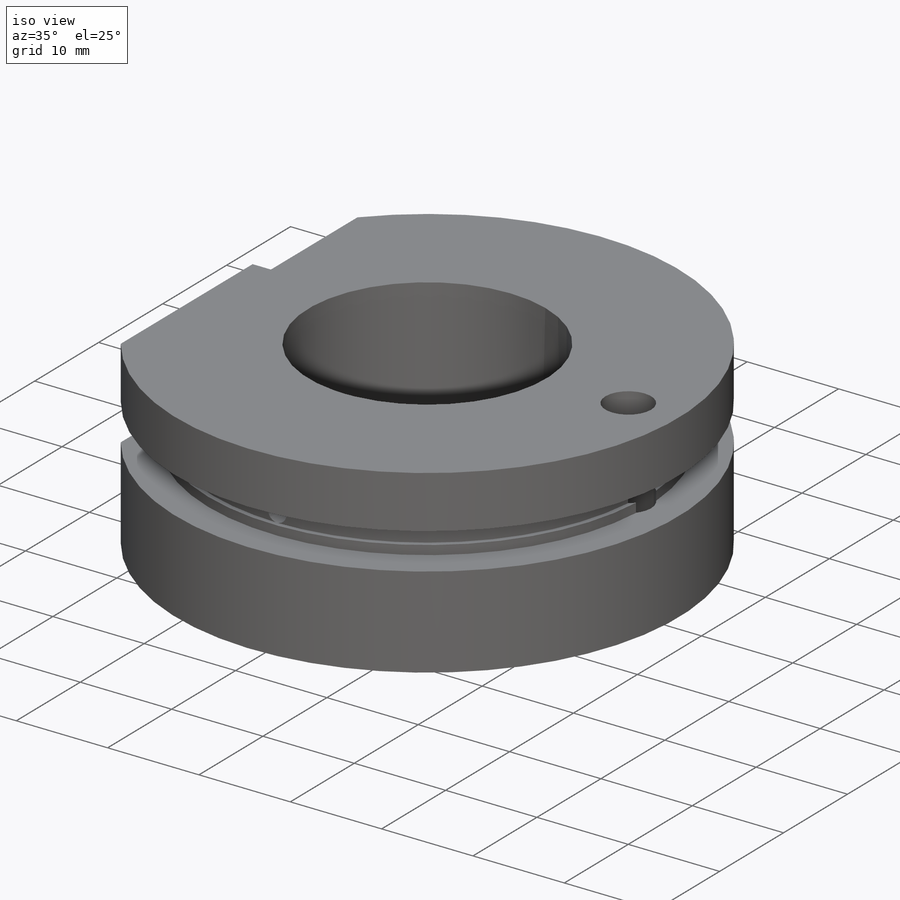
[diagram: iso view]
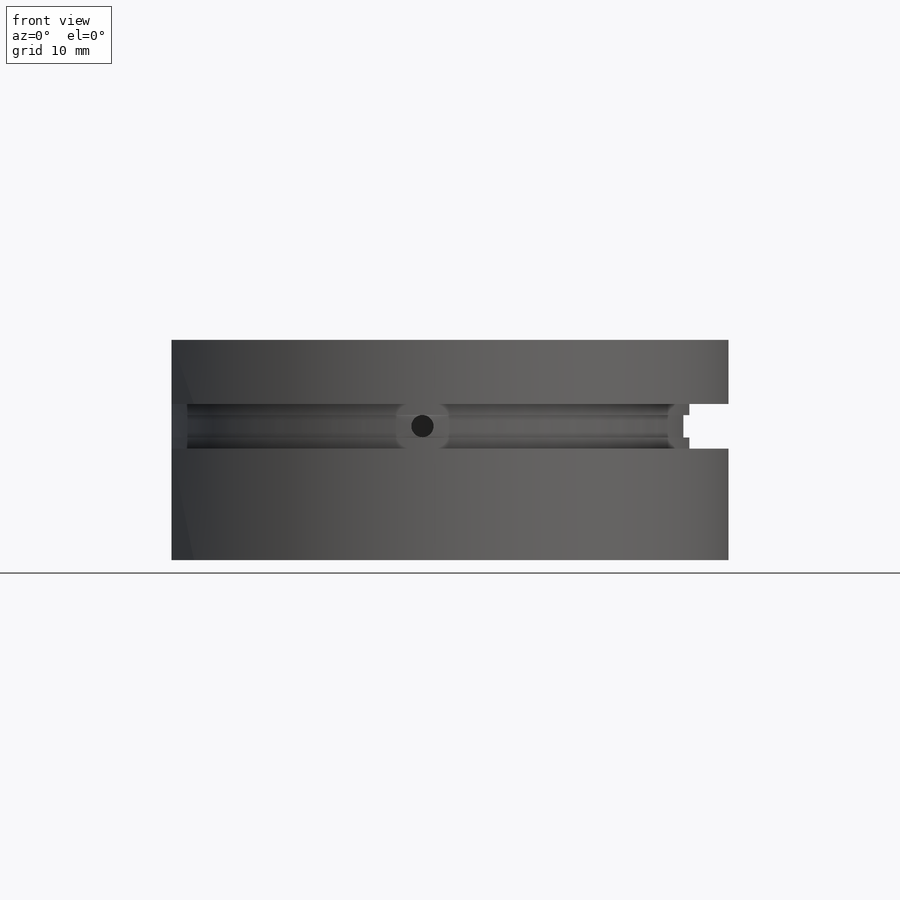
[diagram: front view]
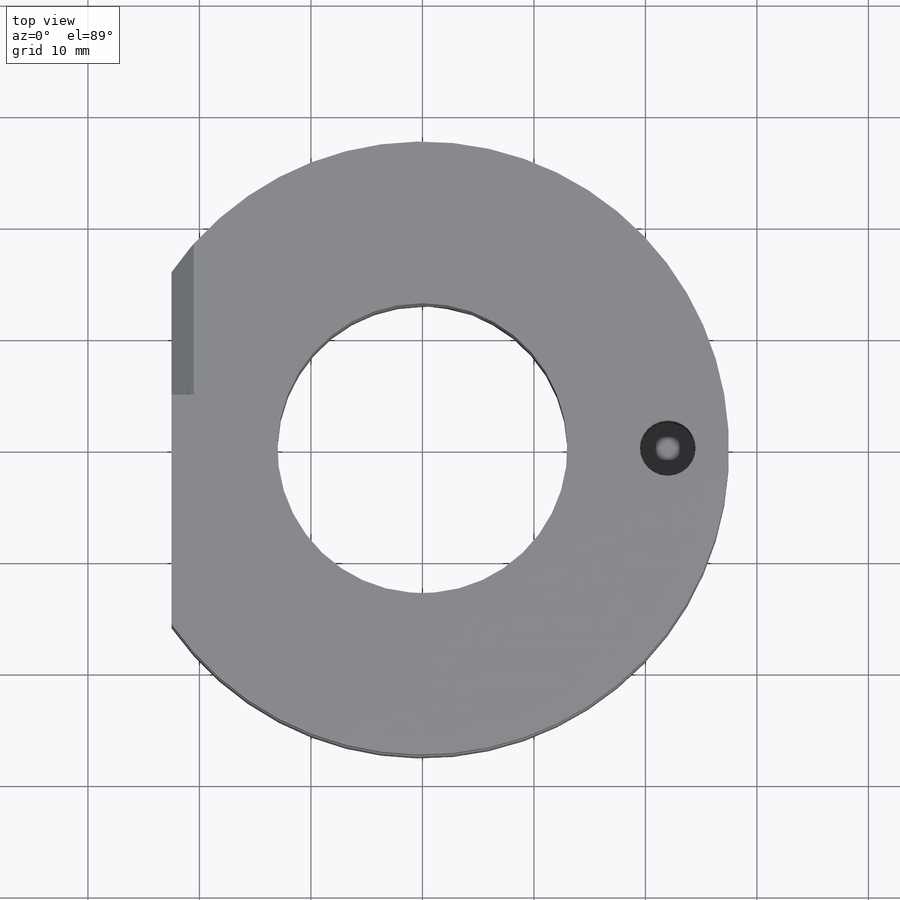
[diagram: top view]
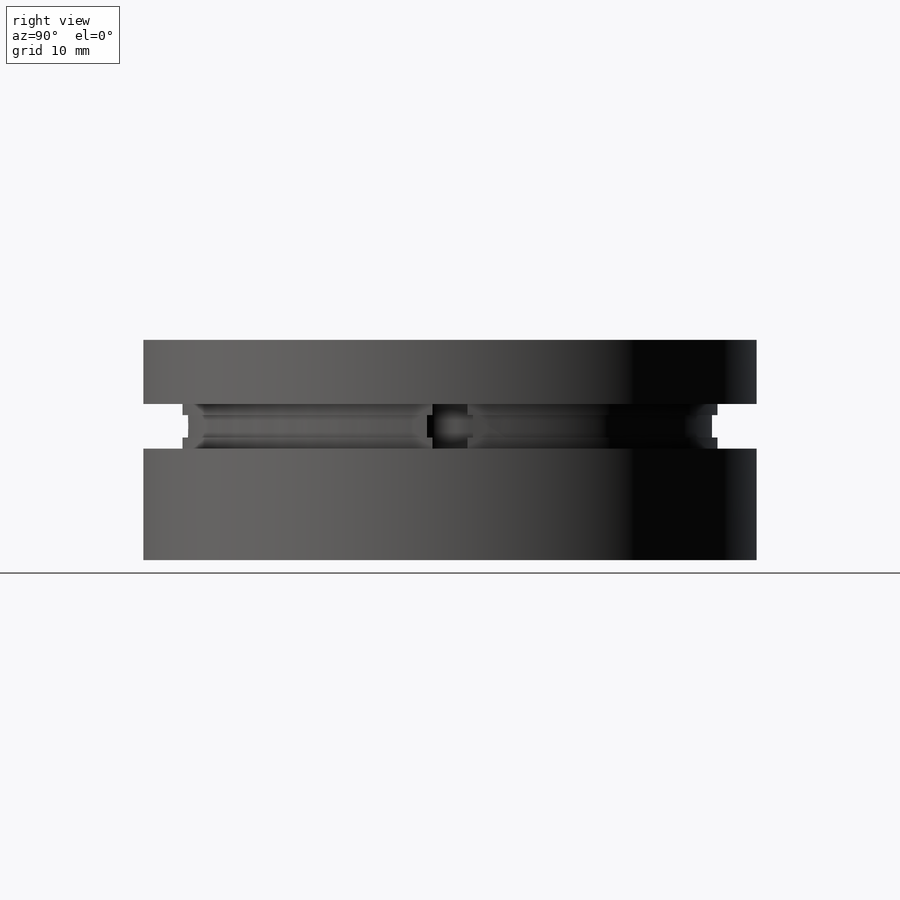
[diagram: right view]
SOLIDWORKS PART (.sldprt)
format: sldprt  version: not decoded by parser v0  size: 293,888 bytes
history: native  units: mm
features: sketch x10, plane x4, cut_extrude x3, material x1, extrude x1, cut_revolve x1, hole x1, helix x1, sweep x1, pattern_circular x1 (+8 scaffold rows collapsed)
feature tree (32):
  scaffold x8  (default folders/planes/origin — collapsed)
  material  "АЛ8Т4 ГОСТ 1583-93"
  plane  "Спереди"
  plane  "Сверху"
  plane  "Справа"
  sketch  "Эскиз1"  dims[D1=55.0mm D2=50.0mm]
  extrude  "Бобышка-Вытянуть1"  Depth=19.75mm
  sketch  "Эскиз2"  dims[D1=26.0mm]
  cut_extrude  "Вырез-Вытянуть2"  [1 undecoded]
  sketch  "Эскиз3"  dims[D1=10.0mm D2=4.0mm D3=24.0mm D4=5.0mm D5=23.5mm D6=1.0mm D7=1.0mm]
  cut_revolve  "Вырез-Повернуть1"  Angle=360deg
  sketch  "Эскиз4"  dims[D1=3.0mm D2=13.0mm]
  plane  "Плоскость1"  Offset=4.81mm
  sketch  "Эскиз5"  dims[D1=2.0mm D2=2.0mm]
  cut_extrude  "Вырез-Вытянуть4"  [1 undecoded]
  hole  "Диаметр отверстия Ø5.0 (5)1"  [1 undecoded]
  sketch  "Эскиз8"  dims[D1=5.5mm]
  sketch  "Эскиз7"  dims[hole-wizard template sketch: 46 standard entries collapsed; hole parameters kept: c15.Диаметр отверстия=5.0mm c15.Глубина отверстия=12.0mm c15.D3=~14.816244mm c15.Угол заточки сверла=180.0deg]
  sketch  "Эскиз9"  dims[D1=2.0mm D2=12.0mm]
  cut_extrude  "Вырез-Вытянуть5"  [1 undecoded]
  sketch  "Эскиз10"  dims[D1=26.0mm]
  helix  "Спираль1"  Pitch=19mm
  sketch  "Эскиз11"  dims[D1=2.0mm]
  sweep  "Вырез-По траектории1"
  pattern_circular  "Круговой массив1"  Count=2 Angle=17deg
decode coverage: 14 of 19 modeling features carry decoded parameters
note: ~ marks probable driven/reference dimensions
note: 4 parameter values undecoded
summary: no parameter record found for 4 features
note: suppression state not decoded; provenance and decode notes live in map.json
